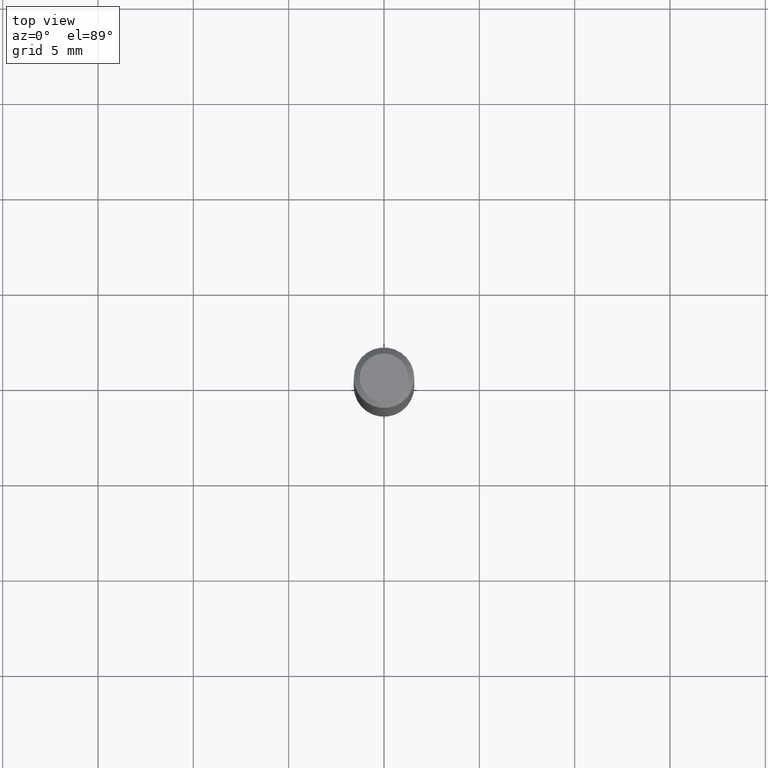
[diagram: clean part render]
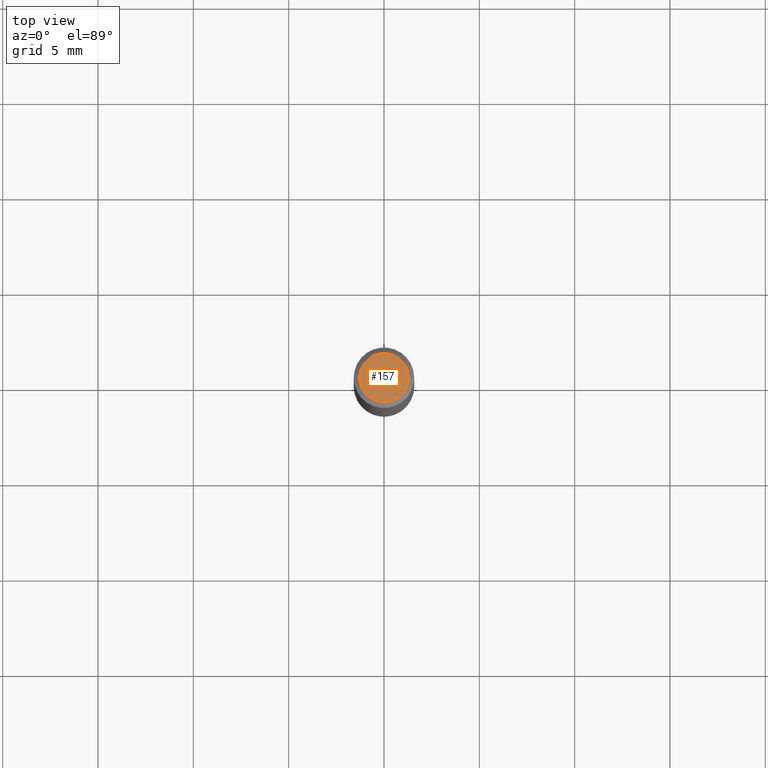
[diagram: same view with one face highlighted and labeled with its STEP entity id]
A machine part, top view. The second image highlights one B-rep face of the part: STEP entity #157.
In plain terms, the highlighted planar face has unit normal (0, -0, -1).
Its self-contained STEP definition (entity closure, byte-faithful):
#55 = CARTESIAN_POINT ( 'NONE',  ( 0.04999999999999999584, -4.077247707424184705E-16, -1.592040838888913461E-18 ) ) ;
#64 = CIRCLE ( 'NONE', #318, 0.04999999999999999584 ) ;
#67 = AXIS2_PLACEMENT_3D ( 'NONE', #306, #113, #77 ) ;
#77 = DIRECTION ( 'NONE',  ( -1.000000000000000000, 6.982962677686265922E-15, -4.876176775795935793E-29 ) ) ;
#88 = ORIENTED_EDGE ( 'NONE', *, *, #287, .T. ) ;
#90 = CARTESIAN_POINT ( 'NONE',  ( 3.893286209682126177E-47, -5.558580879666067980E-33, -1.592040838891559689E-18 ) ) ;
#92 = DIRECTION ( 'NONE',  ( 1.000000000000000000, -6.982962677686265922E-15, 4.875957971899673662E-29 ) ) ;
#113 = DIRECTION ( 'NONE',  ( 2.438088387897960049E-29, -3.491481338843145188E-15, -1.000000000000000000 ) ) ;
#120 = EDGE_LOOP ( 'NONE', ( #420, #88 ) ) ;
#154 = AXIS2_PLACEMENT_3D ( 'NONE', #90, #471, #92 ) ;
#157 = ADVANCED_FACE ( 'NONE', ( #195 ), #460, .F. ) ;
#195 = FACE_OUTER_BOUND ( 'NONE', #120, .T. ) ;
#235 = CIRCLE ( 'NONE', #154, 0.04999999999999999584 ) ;
#260 = DIRECTION ( 'NONE',  ( -2.445468806185136597E-29, 3.491481338843145583E-15, 1.000000000000000000 ) ) ;
#276 = VERTEX_POINT ( 'NONE', #326 ) ;
#287 = EDGE_CURVE ( 'NONE', #311, #276, #235, .T. ) ;
#300 = DIRECTION ( 'NONE',  ( 1.000000000000000000, -6.982962677686265922E-15, 4.875957971899673662E-29 ) ) ;
#306 = CARTESIAN_POINT ( 'NONE',  ( 1.946643104841063088E-47, -2.779290439833033990E-33, -7.960204194457798443E-19 ) ) ;
#311 = VERTEX_POINT ( 'NONE', #55 ) ;
#318 = AXIS2_PLACEMENT_3D ( 'NONE', #445, #260, #300 ) ;
#326 = CARTESIAN_POINT ( 'NONE',  ( -0.04999999999999999584, 3.709698922520826725E-16, -1.592040838894077649E-18 ) ) ;
#420 = ORIENTED_EDGE ( 'NONE', *, *, #462, .T. ) ;
#445 = CARTESIAN_POINT ( 'NONE',  ( 3.893286209682126177E-47, -5.558580879666067980E-33, -1.592040838891559689E-18 ) ) ;
#460 = PLANE ( 'NONE',  #67 ) ;
#462 = EDGE_CURVE ( 'NONE', #276, #311, #64, .T. ) ;
#471 = DIRECTION ( 'NONE',  ( -2.445468806185136597E-29, 3.491481338843145583E-15, 1.000000000000000000 ) ) ;